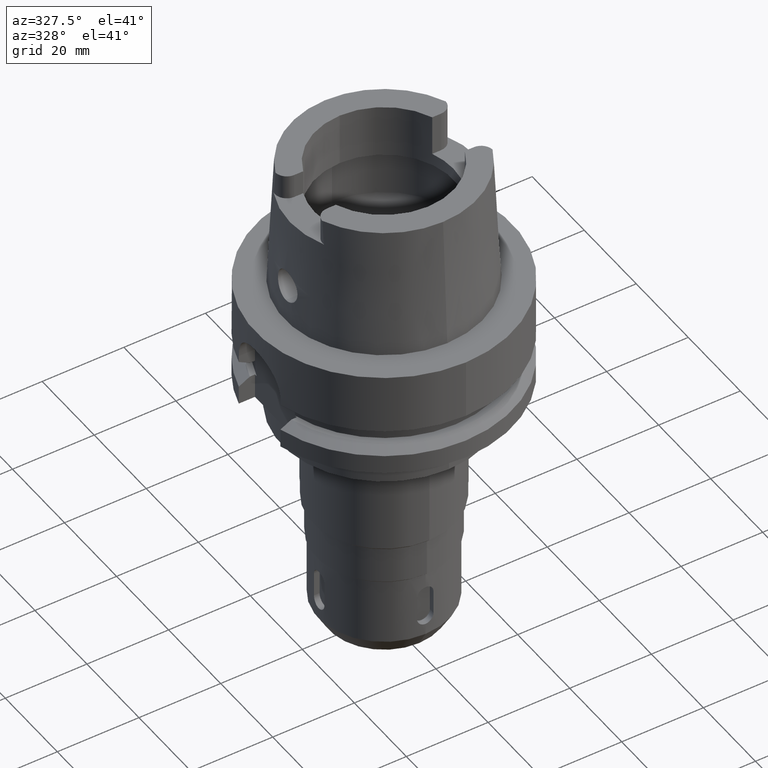
[diagram: clean part render]
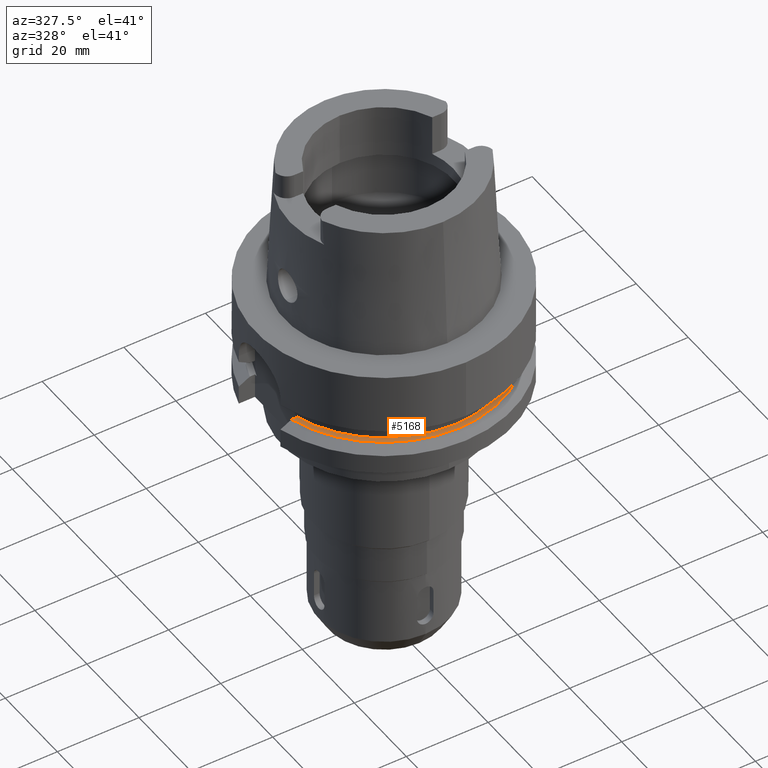
[diagram: same view with one face highlighted and labeled with its STEP entity id]
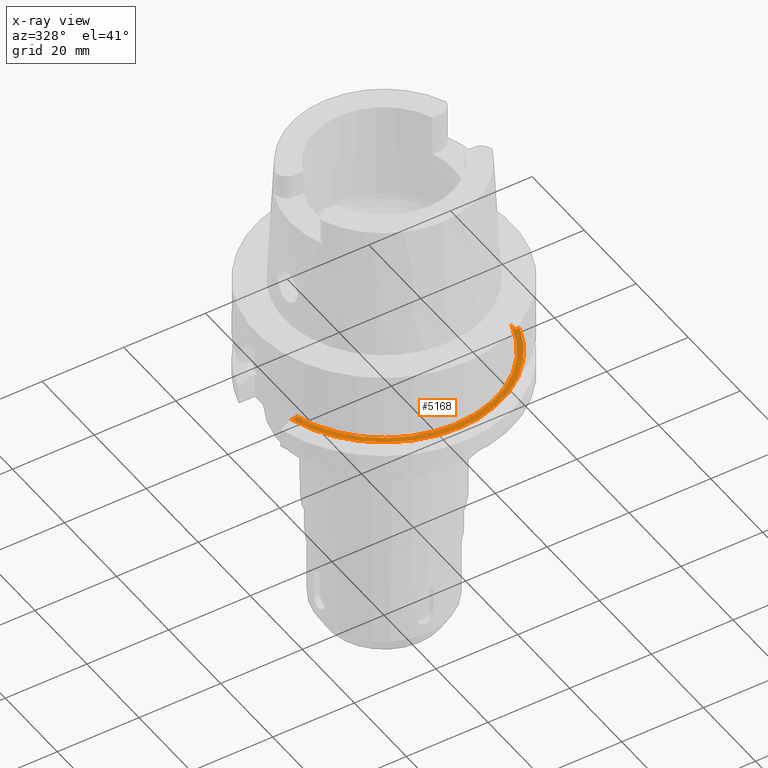
[diagram: x-ray of the same camera — body ghosted, the highlighted face saturated]
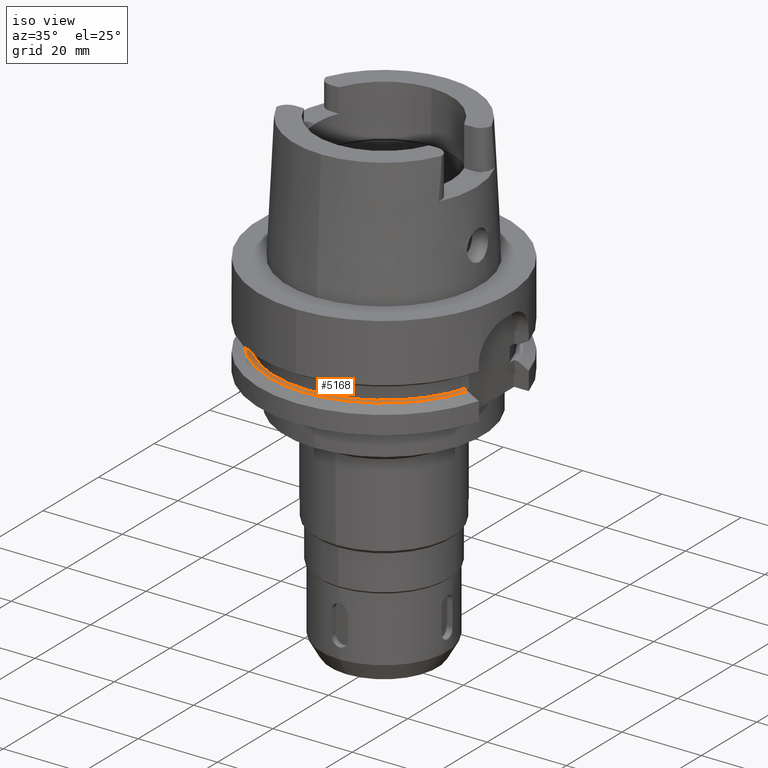
[diagram: same view with one face highlighted and labeled with its STEP entity id]
A machine part, auxiliary view. The second image highlights one B-rep face of the part: STEP entity #5168.
The next image is the same camera in x-ray: the body ghosted, the highlighted face saturated — about 12% of this face is hidden behind the body in this view.
A second angle (iso view) of the same face is appended — the face is thin or edge-on in the first view.
In plain terms, the highlighted planar face has unit normal (0, 0, 1).
Its self-contained STEP definition (entity closure, byte-faithful):
#1676=DIRECTION('',(-2.366280491871E-14,1.E0,0.E0));
#1677=VECTOR('',#1676,1.651530771650E0);
#1678=CARTESIAN_POINT('',(2.65E1,-9.E0,-1.9875E1));
#1679=LINE('',#1678,#1677);
#1765=DIRECTION('',(-1.E0,-1.133362915801E-7,5.939103714508E-13));
#1766=VECTOR('',#1765,1.268163238278E0);
#1767=CARTESIAN_POINT('',(-2.65E1,-8.E0,-1.9875E1));
#1768=LINE('',#1767,#1766);
#2459=DIRECTION('',(5.998158823386E-14,1.E0,0.E0));
#2460=VECTOR('',#2459,6.515307716501E-1);
#2461=CARTESIAN_POINT('',(-2.65E1,-8.E0,-1.9875E1));
#2462=LINE('',#2461,#2460);
#2466=CARTESIAN_POINT('',(0.E0,0.E0,-1.9875E1));
#2467=DIRECTION('',(0.E0,0.E0,1.E0));
#2468=DIRECTION('',(-9.636363636364E-1,-2.672170628491E-1,0.E0));
#2469=AXIS2_PLACEMENT_3D('',#2466,#2467,#2468);
#2474=CARTESIAN_POINT('',(0.E0,0.E0,-1.9875E1));
#2475=DIRECTION('',(0.E0,0.E0,1.E0));
#2476=DIRECTION('',(0.E0,-1.E0,0.E0));
#2477=AXIS2_PLACEMENT_3D('',#2474,#2475,#2476);
#2482=DIRECTION('',(9.999999999997E-1,7.578823809214E-7,7.842606110922E-13));
#2483=VECTOR('',#2482,9.603635440225E-1);
#2484=CARTESIAN_POINT('',(2.65E1,-9.E0,-1.9875E1));
#2485=LINE('',#2484,#2483);
#2489=CARTESIAN_POINT('',(0.E0,0.E0,-1.9875E1));
#2490=DIRECTION('',(0.E0,0.E0,-1.E0));
#2491=DIRECTION('',(9.502643111725E-1,-3.114446000686E-1,0.E0));
#2492=AXIS2_PLACEMENT_3D('',#2489,#2490,#2491);
#2497=CARTESIAN_POINT('',(0.E0,0.E0,-1.9875E1));
#2498=DIRECTION('',(0.E0,0.E0,-1.E0));
#2499=DIRECTION('',(0.E0,-1.E0,0.E0));
#2500=AXIS2_PLACEMENT_3D('',#2497,#2498,#2499);
#3266=CARTESIAN_POINT('',(-2.65E1,-8.E0,-1.9875E1));
#3267=VERTEX_POINT('',#3266);
#3268=CARTESIAN_POINT('',(-2.776816323828E1,-8.000000143729E0,-1.9875E1));
#3269=VERTEX_POINT('',#3268);
#3294=CARTESIAN_POINT('',(-2.65E1,-7.348469228350E0,-1.9875E1));
#3295=VERTEX_POINT('',#3294);
#3302=CARTESIAN_POINT('',(0.E0,-2.889759526419E1,-1.9875E1));
#3303=VERTEX_POINT('',#3302);
#3304=CARTESIAN_POINT('',(2.746035345827E1,-9.E0,-1.9875E1));
#3305=VERTEX_POINT('',#3304);
#3310=CARTESIAN_POINT('',(-1.243449787580E-14,-2.75E1,-1.9875E1));
#3311=CARTESIAN_POINT('',(2.65E1,-7.348469228350E0,-1.9875E1));
#3312=VERTEX_POINT('',#3310);
#3313=VERTEX_POINT('',#3311);
#3314=CARTESIAN_POINT('',(2.65E1,-9.E0,-1.9875E1));
#3315=VERTEX_POINT('',#3314);
#5151=CARTESIAN_POINT('',(0.E0,0.E0,-1.9875E1));
#5152=DIRECTION('',(0.E0,0.E0,1.E0));
#5153=DIRECTION('',(0.E0,1.E0,0.E0));
#5154=AXIS2_PLACEMENT_3D('',#5151,#5152,#5153);
#5155=PLANE('',#5154);
#5156=ORIENTED_EDGE('',*,*,#4717,.T.);
#5157=ORIENTED_EDGE('',*,*,#5146,.T.);
#5158=ORIENTED_EDGE('',*,*,#5144,.T.);
#5159=ORIENTED_EDGE('',*,*,#4616,.F.);
#5160=ORIENTED_EDGE('',*,*,#4652,.T.);
#5162=ORIENTED_EDGE('',*,*,#5161,.T.);
#5164=ORIENTED_EDGE('',*,*,#5163,.T.);
#5165=ORIENTED_EDGE('',*,*,#4683,.F.);
#5166=EDGE_LOOP('',(#5156,#5157,#5158,#5159,#5160,#5162,#5164,#5165));
#5167=FACE_OUTER_BOUND('',#5166,.F.);
#2470=CIRCLE('',#2469,2.75E1);
#2478=CIRCLE('',#2477,2.75E1);
#2493=CIRCLE('',#2492,2.889759526419E1);
#2501=CIRCLE('',#2500,2.889759526419E1);
#4616=EDGE_CURVE('',#3315,#3313,#1679,.T.);
#4652=EDGE_CURVE('',#3315,#3305,#2485,.T.);
#4683=EDGE_CURVE('',#3267,#3269,#1768,.T.);
#4717=EDGE_CURVE('',#3267,#3295,#2462,.T.);
#5144=EDGE_CURVE('',#3312,#3313,#2478,.T.);
#5146=EDGE_CURVE('',#3295,#3312,#2470,.T.);
#5161=EDGE_CURVE('',#3305,#3303,#2493,.T.);
#5163=EDGE_CURVE('',#3303,#3269,#2501,.T.);
#5168=ADVANCED_FACE('',(#5167),#5155,.T.);